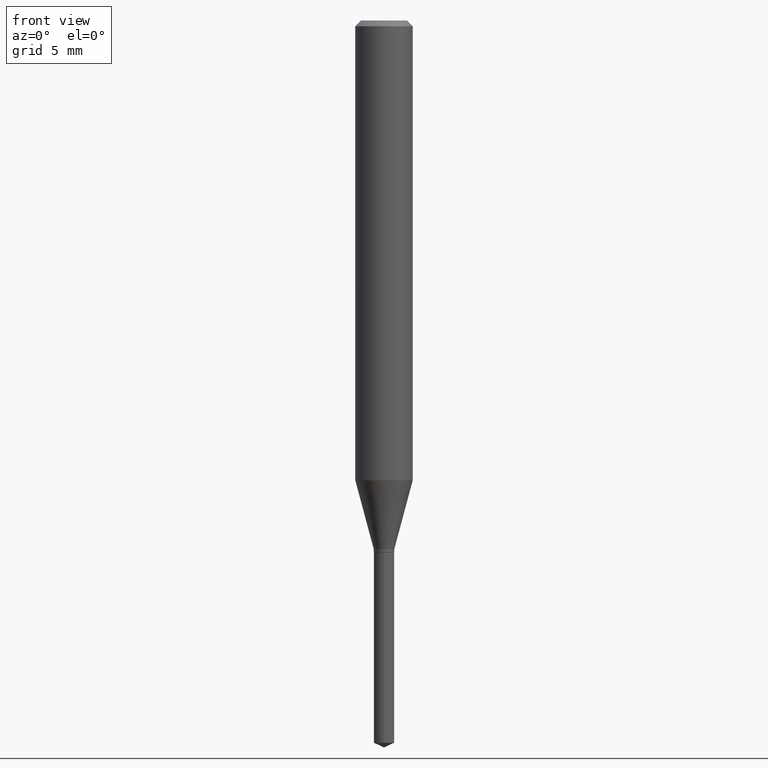
[diagram: clean part render]
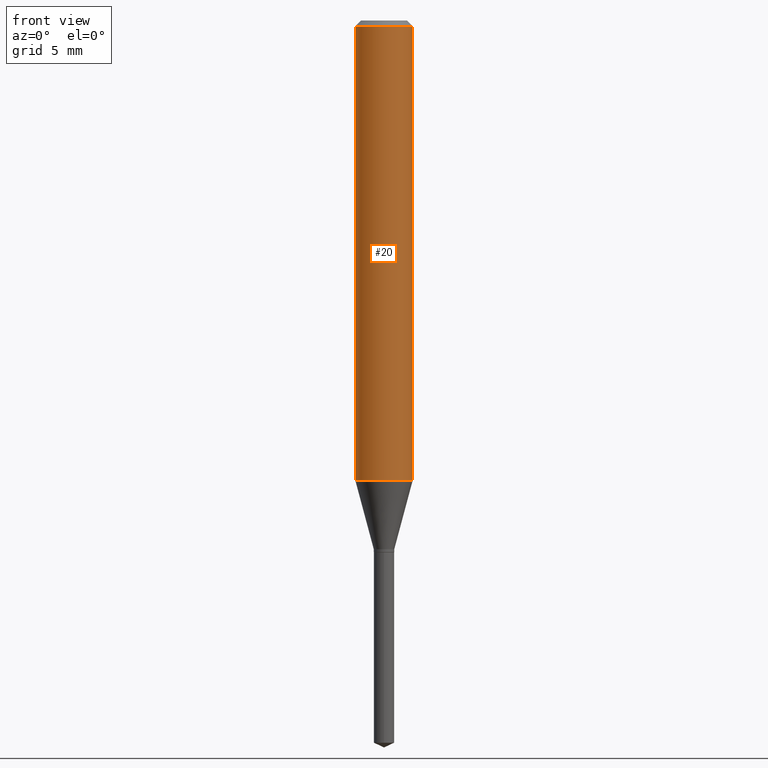
[diagram: same view with one face highlighted and labeled with its STEP entity id]
A machine part, front view. The second image highlights one B-rep face of the part: STEP entity #20.
In plain terms, the highlighted cylindrical surface (edge-blend (fillet) strip) has radius 1.4999 mm, axis along (-0, 0, 1).
Its self-contained STEP definition (entity closure, byte-faithful):
#5 = AXIS2_PLACEMENT_3D ( 'NONE', #137, #60, #446 ) ;
#10 = EDGE_CURVE ( 'NONE', #353, #206, #29, .T. ) ;
#20 = ADVANCED_FACE ( 'NONE', ( #143 ), #258, .T. ) ;
#29 = CIRCLE ( 'NONE', #5, 0.05905000000000000526 ) ;
#31 = CARTESIAN_POINT ( 'NONE',  ( -0.05905000000000000526, -1.253179379049500604E-15, -0.01181000000000007565 ) ) ;
#38 = VERTEX_POINT ( 'NONE', #410 ) ;
#49 = ORIENTED_EDGE ( 'NONE', *, *, #384, .T. ) ;
#60 = DIRECTION ( 'NONE',  ( -2.445468806185136597E-29, 3.491481338843145583E-15, 1.000000000000000000 ) ) ;
#69 = ORIENTED_EDGE ( 'NONE', *, *, #227, .T. ) ;
#70 = LINE ( 'NONE', #148, #273 ) ;
#96 = DIRECTION ( 'NONE',  ( 1.000000000000000000, -6.982962677686266711E-15, 0.000000000000000000 ) ) ;
#104 = VERTEX_POINT ( 'NONE', #186 ) ;
#120 = ORIENTED_EDGE ( 'NONE', *, *, #418, .F. ) ;
#137 = CARTESIAN_POINT ( 'NONE',  ( 2.888098660104664642E-31, -4.123439461173780879E-17, -0.01181000000000007565 ) ) ;
#140 = DIRECTION ( 'NONE',  ( 1.000000000000000000, -6.982962677686266711E-15, 4.876176775795936353E-29 ) ) ;
#143 = FACE_OUTER_BOUND ( 'NONE', #266, .T. ) ;
#148 = CARTESIAN_POINT ( 'NONE',  ( -0.05905000000000006771, 4.195754854663396409E-16, -2.904631170795525045E-30 ) ) ;
#168 = AXIS2_PLACEMENT_3D ( 'NONE', #251, #443, #140 ) ;
#183 = DIRECTION ( 'NONE',  ( -2.445468806185136877E-29, 3.491481338843145188E-15, 1.000000000000000000 ) ) ;
#184 = DIRECTION ( 'NONE',  ( -2.445468806185136597E-29, 3.491481338843145583E-15, 1.000000000000000000 ) ) ;
#186 = CARTESIAN_POINT ( 'NONE',  ( -0.05905000000000011628, -2.884699848953603761E-15, -0.9463820693123824457 ) ) ;
#193 = CARTESIAN_POINT ( 'NONE',  ( 0.05905000000000006771, -4.123439461173745257E-16, 2.879382386107503723E-30 ) ) ;
#198 = CIRCLE ( 'NONE', #439, 0.05905000000000011628 ) ;
#206 = VERTEX_POINT ( 'NONE', #398 ) ;
#227 = EDGE_CURVE ( 'NONE', #104, #38, #198, .T. ) ;
#251 = CARTESIAN_POINT ( 'NONE',  ( 0.000000000000000000, 0.000000000000000000, 0.000000000000000000 ) ) ;
#258 = CYLINDRICAL_SURFACE ( 'NONE', #168, 0.05905000000000006771 ) ;
#266 = EDGE_LOOP ( 'NONE', ( #120, #69, #49, #433 ) ) ;
#273 = VECTOR ( 'NONE', #183, 39.37007874015748143 ) ;
#316 = CARTESIAN_POINT ( 'NONE',  ( 2.314347829236371175E-29, -3.304275334419943649E-15, -0.9463820693123824457 ) ) ;
#333 = DIRECTION ( 'NONE',  ( -2.445468806185136877E-29, 3.491481338843145188E-15, 1.000000000000000000 ) ) ;
#353 = VERTEX_POINT ( 'NONE', #31 ) ;
#378 = LINE ( 'NONE', #193, #486 ) ;
#384 = EDGE_CURVE ( 'NONE', #38, #206, #378, .T. ) ;
#398 = CARTESIAN_POINT ( 'NONE',  ( 0.05905000000000000526, -4.535783407291119586E-16, -0.01181000000000007565 ) ) ;
#410 = CARTESIAN_POINT ( 'NONE',  ( 0.05905000000000011628, -3.716619280537318569E-15, -0.9463820693123824457 ) ) ;
#418 = EDGE_CURVE ( 'NONE', #104, #353, #70, .T. ) ;
#433 = ORIENTED_EDGE ( 'NONE', *, *, #10, .F. ) ;
#439 = AXIS2_PLACEMENT_3D ( 'NONE', #316, #184, #96 ) ;
#443 = DIRECTION ( 'NONE',  ( -2.445468806185136597E-29, 3.491481338843145583E-15, 1.000000000000000000 ) ) ;
#446 = DIRECTION ( 'NONE',  ( 1.000000000000000000, -6.982962677686268288E-15, 0.000000000000000000 ) ) ;
#486 = VECTOR ( 'NONE', #333, 39.37007874015748143 ) ;